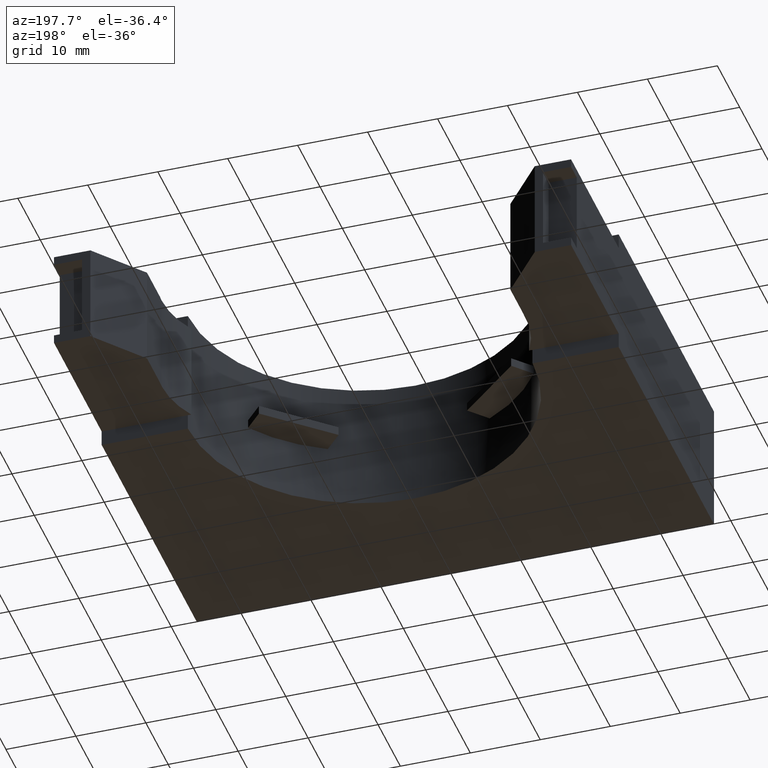
[diagram: clean part render]
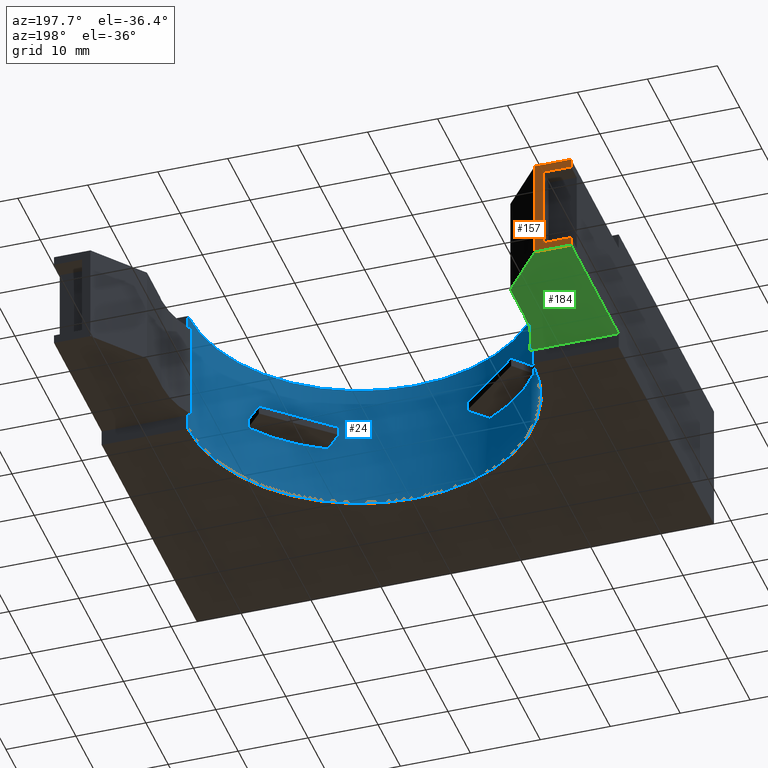
[diagram: same view with three faces highlighted in distinct colors, each labeled with its STEP entity id]
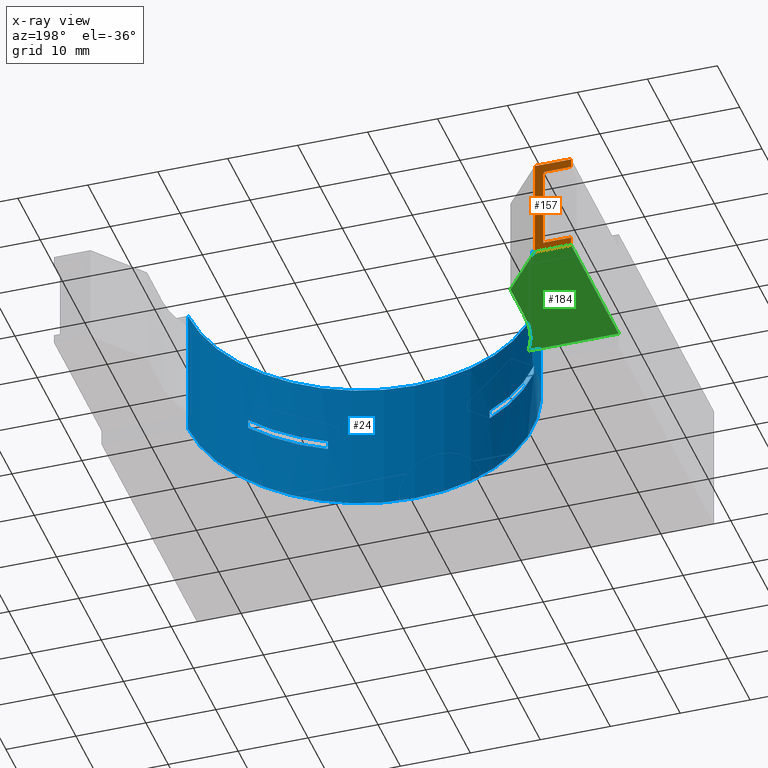
[diagram: x-ray of the same camera — body ghosted, the three highlighted faces saturated]
A machine part, auxiliary view with three faces highlighted in distinct colors.
The next image is the same camera in x-ray (body ghosted, the three faces saturated) — at least one of them is partly hidden behind the body in this view.
Their STEP definitions:

[orange] entity #157 — the highlighted planar face has unit normal (0, -1, 0).
#22 = ORIENTED_EDGE ( 'NONE', *, *, #106, .T. ) ;
#62 = ORIENTED_EDGE ( 'NONE', *, *, #63, .F. ) ;
#63 = EDGE_CURVE ( 'NONE', #64, #103, #859, .T. ) ;
#64 = VERTEX_POINT ( 'NONE', #855 ) ;
#65 = ORIENTED_EDGE ( 'NONE', *, *, #66, .F. ) ;
#66 = EDGE_CURVE ( 'NONE', #67, #64, #854, .T. ) ;
#67 = VERTEX_POINT ( 'NONE', #850 ) ;
#68 = ORIENTED_EDGE ( 'NONE', *, *, #69, .F. ) ;
#69 = EDGE_CURVE ( 'NONE', #70, #67, #849, .T. ) ;
#70 = VERTEX_POINT ( 'NONE', #845 ) ;
#71 = ORIENTED_EDGE ( 'NONE', *, *, #320, .F. ) ;
#78 = ORIENTED_EDGE ( 'NONE', *, *, #80, .F. ) ;
#79 = VERTEX_POINT ( 'NONE', #756 ) ;
#80 = EDGE_CURVE ( 'NONE', #81, #79, #755, .T. ) ;
#81 = VERTEX_POINT ( 'NONE', #751 ) ;
#102 = EDGE_CURVE ( 'NONE', #103, #104, #781, .T. ) ;
#103 = VERTEX_POINT ( 'NONE', #777 ) ;
#104 = VERTEX_POINT ( 'NONE', #776 ) ;
#106 = EDGE_CURVE ( 'NONE', #321, #79, #775, .T. ) ;
#157 = ADVANCED_FACE ( 'NONE', ( #732 ), #731, .F. ) ;
#158 = EDGE_LOOP ( 'NONE', ( #159, #62, #65, #68, #71, #22, #78, #335 ) ) ;
#159 = ORIENTED_EDGE ( 'NONE', *, *, #102, .F. ) ;
#320 = EDGE_CURVE ( 'NONE', #321, #70, #1314, .T. ) ;
#321 = VERTEX_POINT ( 'NONE', #1310 ) ;
#335 = ORIENTED_EDGE ( 'NONE', *, *, #336, .F. ) ;
#336 = EDGE_CURVE ( 'NONE', #104, #81, #1217, .T. ) ;
#690 = DIRECTION ( 'NONE',  ( 1.000000000000000000, -0.0000000000000000000, -0.0000000000000000000 ) ) ;
#691 = VECTOR ( 'NONE', #690, 39.37007874015748100 ) ;
#692 = CARTESIAN_POINT ( 'NONE',  ( -1.455000000000000700, 1.260000000000000200, 0.6604500000000004300 ) ) ;
#727 = DIRECTION ( 'NONE',  ( 0.0000000000000000000, -0.0000000000000000000, -1.000000000000000000 ) ) ;
#728 = DIRECTION ( 'NONE',  ( 0.0000000000000000000, -1.000000000000000000, 0.0000000000000000000 ) ) ;
#729 = AXIS2_PLACEMENT_3D ( 'NONE', #730, #728, #727 ) ;
#730 = CARTESIAN_POINT ( 'NONE',  ( -1.455000000000000700, 1.260000000000000200, 0.7500000000000001100 ) ) ;
#731 = PLANE ( 'NONE',  #729 ) ;
#732 = FACE_OUTER_BOUND ( 'NONE', #158, .T. ) ;
#751 = CARTESIAN_POINT ( 'NONE',  ( -1.250507812500000000, 1.260000000000000200, 0.08954999999999979600 ) ) ;
#752 = DIRECTION ( 'NONE',  ( -0.0000000000000000000, -0.0000000000000000000, 1.000000000000000000 ) ) ;
#753 = VECTOR ( 'NONE', #752, 39.37007874015748100 ) ;
#754 = CARTESIAN_POINT ( 'NONE',  ( -1.250507812500000000, 1.260000000000000200, 0.0000000000000000000 ) ) ;
#755 = LINE ( 'NONE', #754, #753 ) ;
#756 = CARTESIAN_POINT ( 'NONE',  ( -1.250507812500000200, 1.260000000000000200, 0.6604500000000004300 ) ) ;
#775 = LINE ( 'NONE', #692, #691 ) ;
#776 = CARTESIAN_POINT ( 'NONE',  ( -1.455000000000000700, 1.260000000000000200, 0.08954999999999983800 ) ) ;
#777 = CARTESIAN_POINT ( 'NONE',  ( -1.455000000000000700, 1.260000000000000200, 0.1397750000000001200 ) ) ;
#778 = DIRECTION ( 'NONE',  ( -0.0000000000000000000, -0.0000000000000000000, -1.000000000000000000 ) ) ;
#779 = VECTOR ( 'NONE', #778, 39.37007874015748100 ) ;
#780 = CARTESIAN_POINT ( 'NONE',  ( -1.455000000000000700, 1.260000000000000200, 0.7500000000000001100 ) ) ;
#781 = LINE ( 'NONE', #780, #779 ) ;
#845 = CARTESIAN_POINT ( 'NONE',  ( -1.455000000000000700, 1.260000000000000200, 0.6102250000000001300 ) ) ;
#846 = DIRECTION ( 'NONE',  ( 1.000000000000000000, 0.0000000000000000000, -8.629693460194530500E-016 ) ) ;
#847 = VECTOR ( 'NONE', #846, 39.37007874015748100 ) ;
#848 = CARTESIAN_POINT ( 'NONE',  ( -1.455000000000000700, 1.260000000000000200, 0.6102250000000001300 ) ) ;
#849 = LINE ( 'NONE', #848, #847 ) ;
#850 = CARTESIAN_POINT ( 'NONE',  ( -1.296718132500000100, 1.260000000000000200, 0.6102250000000000200 ) ) ;
#851 = DIRECTION ( 'NONE',  ( -0.0000000000000000000, -0.0000000000000000000, -1.000000000000000000 ) ) ;
#852 = VECTOR ( 'NONE', #851, 39.37007874015748100 ) ;
#853 = CARTESIAN_POINT ( 'NONE',  ( -1.296718132500000100, 1.260000000000000200, 0.1397750000000001200 ) ) ;
#854 = LINE ( 'NONE', #853, #852 ) ;
#855 = CARTESIAN_POINT ( 'NONE',  ( -1.296718132500000100, 1.260000000000000200, 0.1397750000000001200 ) ) ;
#856 = DIRECTION ( 'NONE',  ( -1.000000000000000000, -0.0000000000000000000, -0.0000000000000000000 ) ) ;
#857 = VECTOR ( 'NONE', #856, 39.37007874015748100 ) ;
#858 = CARTESIAN_POINT ( 'NONE',  ( -1.455000000000000700, 1.260000000000000200, 0.1397750000000001200 ) ) ;
#859 = LINE ( 'NONE', #858, #857 ) ;
#1214 = DIRECTION ( 'NONE',  ( 1.000000000000000000, -0.0000000000000000000, -0.0000000000000000000 ) ) ;
#1215 = VECTOR ( 'NONE', #1214, 39.37007874015748100 ) ;
#1216 = CARTESIAN_POINT ( 'NONE',  ( -1.455000000000000700, 1.260000000000000200, 0.08954999999999983800 ) ) ;
#1217 = LINE ( 'NONE', #1216, #1215 ) ;
#1310 = CARTESIAN_POINT ( 'NONE',  ( -1.455000000000000700, 1.260000000000000200, 0.6604500000000004300 ) ) ;
#1311 = DIRECTION ( 'NONE',  ( -0.0000000000000000000, -0.0000000000000000000, -1.000000000000000000 ) ) ;
#1312 = VECTOR ( 'NONE', #1311, 39.37007874015748100 ) ;
#1313 = CARTESIAN_POINT ( 'NONE',  ( -1.455000000000000700, 1.260000000000000200, 0.7500000000000001100 ) ) ;
#1314 = LINE ( 'NONE', #1313, #1312 ) ;

[blue] entity #24 — the highlighted cylindrical surface (partial cylindrical patch) has radius 24.638 mm, axis along (-0, -0, 1).
#24 = ADVANCED_FACE ( 'NONE', ( #704, #703, #702 ), #696, .F. ) ;
#25 = ORIENTED_EDGE ( 'NONE', *, *, #42, .T. ) ;
#32 = EDGE_LOOP ( 'NONE', ( #25, #45, #246, #160, #163, #166, #169, #172 ) ) ;
#42 = EDGE_CURVE ( 'NONE', #43, #44, #893, .T. ) ;
#43 = VERTEX_POINT ( 'NONE', #884 ) ;
#44 = VERTEX_POINT ( 'NONE', #883 ) ;
#45 = ORIENTED_EDGE ( 'NONE', *, *, #249, .F. ) ;
#92 = VERTEX_POINT ( 'NONE', #797 ) ;
#93 = ORIENTED_EDGE ( 'NONE', *, *, #94, .T. ) ;
#94 = EDGE_CURVE ( 'NONE', #176, #95, #796, .T. ) ;
#95 = VERTEX_POINT ( 'NONE', #792 ) ;
#96 = ORIENTED_EDGE ( 'NONE', *, *, #97, .T. ) ;
#97 = EDGE_CURVE ( 'NONE', #95, #98, #791, .T. ) ;
#98 = VERTEX_POINT ( 'NONE', #786 ) ;
#99 = ORIENTED_EDGE ( 'NONE', *, *, #100, .F. ) ;
#100 = EDGE_CURVE ( 'NONE', #92, #98, #785, .T. ) ;
#134 = VERTEX_POINT ( 'NONE', #818 ) ;
#135 = VERTEX_POINT ( 'NONE', #817 ) ;
#136 = ORIENTED_EDGE ( 'NONE', *, *, #137, .F. ) ;
#137 = EDGE_CURVE ( 'NONE', #138, #134, #816, .T. ) ;
#138 = VERTEX_POINT ( 'NONE', #811 ) ;
#139 = ORIENTED_EDGE ( 'NONE', *, *, #140, .T. ) ;
#140 = EDGE_CURVE ( 'NONE', #138, #141, #810, .T. ) ;
#141 = VERTEX_POINT ( 'NONE', #715 ) ;
#142 = ORIENTED_EDGE ( 'NONE', *, *, #143, .T. ) ;
#143 = EDGE_CURVE ( 'NONE', #141, #135, #713, .T. ) ;
#144 = EDGE_LOOP ( 'NONE', ( #145, #93, #96, #99 ) ) ;
#145 = ORIENTED_EDGE ( 'NONE', *, *, #175, .F. ) ;
#160 = ORIENTED_EDGE ( 'NONE', *, *, #161, .F. ) ;
#161 = EDGE_CURVE ( 'NONE', #162, #248, #726, .T. ) ;
#162 = VERTEX_POINT ( 'NONE', #722 ) ;
#163 = ORIENTED_EDGE ( 'NONE', *, *, #164, .F. ) ;
#164 = EDGE_CURVE ( 'NONE', #165, #162, #721, .T. ) ;
#165 = VERTEX_POINT ( 'NONE', #716 ) ;
#166 = ORIENTED_EDGE ( 'NONE', *, *, #167, .T. ) ;
#167 = EDGE_CURVE ( 'NONE', #165, #168, #382, .T. ) ;
#168 = VERTEX_POINT ( 'NONE', #931 ) ;
#169 = ORIENTED_EDGE ( 'NONE', *, *, #170, .T. ) ;
#170 = EDGE_CURVE ( 'NONE', #168, #171, #970, .T. ) ;
#171 = VERTEX_POINT ( 'NONE', #966 ) ;
#172 = ORIENTED_EDGE ( 'NONE', *, *, #173, .T. ) ;
#173 = EDGE_CURVE ( 'NONE', #171, #43, #965, .T. ) ;
#174 = EDGE_LOOP ( 'NONE', ( #257, #136, #139, #142 ) ) ;
#175 = EDGE_CURVE ( 'NONE', #176, #92, #980, .T. ) ;
#176 = VERTEX_POINT ( 'NONE', #975 ) ;
#246 = ORIENTED_EDGE ( 'NONE', *, *, #247, .F. ) ;
#247 = EDGE_CURVE ( 'NONE', #248, #250, #1063, .T. ) ;
#248 = VERTEX_POINT ( 'NONE', #1059 ) ;
#249 = EDGE_CURVE ( 'NONE', #250, #44, #1058, .T. ) ;
#250 = VERTEX_POINT ( 'NONE', #1054 ) ;
#257 = ORIENTED_EDGE ( 'NONE', *, *, #258, .F. ) ;
#258 = EDGE_CURVE ( 'NONE', #134, #135, #1040, .T. ) ;
#377 = CARTESIAN_POINT ( 'NONE',  ( -0.9700000000000003100, 0.4199999999999998700, 0.0000000000000000000 ) ) ;
#382 = LINE ( 'NONE', #377, #971 ) ;
#693 = DIRECTION ( 'NONE',  ( 1.000000000000000000, 0.0000000000000000000, 0.0000000000000000000 ) ) ;
#694 = DIRECTION ( 'NONE',  ( -0.0000000000000000000, -0.0000000000000000000, 1.000000000000000000 ) ) ;
#695 = AXIS2_PLACEMENT_3D ( 'NONE', #697, #694, #693 ) ;
#696 = CYLINDRICAL_SURFACE ( 'NONE', #695, 0.9700000000000003100 ) ;
#697 = CARTESIAN_POINT ( 'NONE',  ( 0.0000000000000000000, 0.4199999999999998700, 0.0000000000000000000 ) ) ;
#702 = FACE_BOUND ( 'NONE', #144, .T. ) ;
#703 = FACE_BOUND ( 'NONE', #174, .T. ) ;
#704 = FACE_OUTER_BOUND ( 'NONE', #32, .T. ) ;
#709 = DIRECTION ( 'NONE',  ( 0.0000000000000000000, 1.000000000000000000, 7.040845344495519300E-017 ) ) ;
#710 = DIRECTION ( 'NONE',  ( 0.0000000000000000000, 8.326672684688674100E-017, -1.000000000000000000 ) ) ;
#711 = CARTESIAN_POINT ( 'NONE',  ( 0.0000000000000000000, 0.4199999999999998200, 0.4000000000000002400 ) ) ;
#712 = AXIS2_PLACEMENT_3D ( 'NONE', #711, #710, #709 ) ;
#713 = CIRCLE ( 'NONE', #712, 0.9700000000000005300 ) ;
#715 = CARTESIAN_POINT ( 'NONE',  ( -0.4556505851490764100, -0.4363191836303247400, 0.4000000000000001900 ) ) ;
#716 = CARTESIAN_POINT ( 'NONE',  ( -0.9700000000000003100, 0.4199999999999998700, 0.0000000000000000000 ) ) ;
#717 = DIRECTION ( 'NONE',  ( 1.000000000000000000, 0.0000000000000000000, 0.0000000000000000000 ) ) ;
#718 = DIRECTION ( 'NONE',  ( 0.0000000000000000000, 0.0000000000000000000, 1.000000000000000000 ) ) ;
#719 = CARTESIAN_POINT ( 'NONE',  ( 0.0000000000000000000, 0.4199999999999998700, 0.0000000000000000000 ) ) ;
#720 = AXIS2_PLACEMENT_3D ( 'NONE', #719, #718, #717 ) ;
#721 = CIRCLE ( 'NONE', #720, 0.9700000000000003100 ) ;
#722 = CARTESIAN_POINT ( 'NONE',  ( 0.9700000000000003100, 0.4199999999999998700, 0.0000000000000000000 ) ) ;
#723 = DIRECTION ( 'NONE',  ( -0.0000000000000000000, -0.0000000000000000000, 1.000000000000000000 ) ) ;
#724 = VECTOR ( 'NONE', #723, 39.37007874015748100 ) ;
#725 = CARTESIAN_POINT ( 'NONE',  ( 0.9700000000000003100, 0.4199999999999998700, 0.0000000000000000000 ) ) ;
#726 = LINE ( 'NONE', #725, #724 ) ;
#782 = DIRECTION ( 'NONE',  ( -0.0000000000000000000, -8.326672684688672800E-017, 1.000000000000000000 ) ) ;
#783 = VECTOR ( 'NONE', #782, 39.37007874015748100 ) ;
#784 = CARTESIAN_POINT ( 'NONE',  ( 0.4556505851490762500, -0.4363191836303248500, 0.3500000000000000900 ) ) ;
#785 = LINE ( 'NONE', #784, #783 ) ;
#786 = CARTESIAN_POINT ( 'NONE',  ( 0.4556505851490761400, -0.4363191836303245100, 0.4000000000000001900 ) ) ;
#787 = DIRECTION ( 'NONE',  ( 0.0000000000000000000, -1.000000000000000000, -7.040845344495519300E-017 ) ) ;
#788 = DIRECTION ( 'NONE',  ( -0.0000000000000000000, 8.326672684688674100E-017, -1.000000000000000000 ) ) ;
#789 = CARTESIAN_POINT ( 'NONE',  ( 0.0000000000000000000, 0.4199999999999998200, 0.4000000000000002400 ) ) ;
#790 = AXIS2_PLACEMENT_3D ( 'NONE', #789, #788, #787 ) ;
#791 = CIRCLE ( 'NONE', #790, 0.9700000000000005300 ) ;
#792 = CARTESIAN_POINT ( 'NONE',  ( 0.8039997220916044200, -0.1226642118996092600, 0.4000000000000001900 ) ) ;
#793 = DIRECTION ( 'NONE',  ( -0.0000000000000000000, -8.326672684688672800E-017, 1.000000000000000000 ) ) ;
#794 = VECTOR ( 'NONE', #793, 39.37007874015748100 ) ;
#795 = CARTESIAN_POINT ( 'NONE',  ( 0.8039997220916044200, -0.1226642118996092600, 0.3500000000000001400 ) ) ;
#796 = LINE ( 'NONE', #795, #794 ) ;
#797 = CARTESIAN_POINT ( 'NONE',  ( 0.4556505851490762500, -0.4363191836303248500, 0.3500000000000000900 ) ) ;
#807 = DIRECTION ( 'NONE',  ( -0.0000000000000000000, -8.326672684688672800E-017, 1.000000000000000000 ) ) ;
#808 = VECTOR ( 'NONE', #807, 39.37007874015748100 ) ;
#809 = CARTESIAN_POINT ( 'NONE',  ( -0.4556505851490764100, -0.4363191836303247400, 0.3500000000000001400 ) ) ;
#810 = LINE ( 'NONE', #809, #808 ) ;
#811 = CARTESIAN_POINT ( 'NONE',  ( -0.4556505851490761900, -0.4363191836303242400, 0.3500000000000001400 ) ) ;
#812 = DIRECTION ( 'NONE',  ( 0.0000000000000000000, 1.000000000000000000, 7.040845344495519300E-017 ) ) ;
#813 = DIRECTION ( 'NONE',  ( 0.0000000000000000000, 8.326672684688674100E-017, -1.000000000000000000 ) ) ;
#814 = CARTESIAN_POINT ( 'NONE',  ( 0.0000000000000000000, 0.4199999999999998200, 0.3500000000000002600 ) ) ;
#815 = AXIS2_PLACEMENT_3D ( 'NONE', #814, #813, #812 ) ;
#816 = CIRCLE ( 'NONE', #815, 0.9700000000000005300 ) ;
#817 = CARTESIAN_POINT ( 'NONE',  ( -0.8039997220916044200, -0.1226642118996088000, 0.4000000000000002400 ) ) ;
#818 = CARTESIAN_POINT ( 'NONE',  ( -0.8039997220916044200, -0.1226642118996088000, 0.3500000000000001400 ) ) ;
#883 = CARTESIAN_POINT ( 'NONE',  ( 0.9700000000000003100, 0.4199999999999997600, 0.7500000000000001100 ) ) ;
#884 = CARTESIAN_POINT ( 'NONE',  ( -0.9700000000000003100, 0.4199999999999997600, 0.7500000000000001100 ) ) ;
#885 = DIRECTION ( 'NONE',  ( 1.000000000000000000, 0.0000000000000000000, 0.0000000000000000000 ) ) ;
#886 = DIRECTION ( 'NONE',  ( 0.0000000000000000000, 0.0000000000000000000, 1.000000000000000000 ) ) ;
#887 = CARTESIAN_POINT ( 'NONE',  ( 0.0000000000000000000, 0.4199999999999998700, 0.7500000000000001100 ) ) ;
#888 = AXIS2_PLACEMENT_3D ( 'NONE', #887, #886, #885 ) ;
#893 = CIRCLE ( 'NONE', #888, 0.9700000000000003100 ) ;
#931 = CARTESIAN_POINT ( 'NONE',  ( -0.9700000000000003100, 0.4199999999999998700, 0.08954999999999972700 ) ) ;
#962 = DIRECTION ( 'NONE',  ( -0.0000000000000000000, -0.0000000000000000000, 1.000000000000000000 ) ) ;
#963 = VECTOR ( 'NONE', #962, 39.37007874015748100 ) ;
#964 = CARTESIAN_POINT ( 'NONE',  ( -0.9700000000000002000, 0.4199999999999997600, 0.0000000000000000000 ) ) ;
#965 = LINE ( 'NONE', #964, #963 ) ;
#966 = CARTESIAN_POINT ( 'NONE',  ( -0.9700000000000003100, 0.4199999999999997600, 0.6604500000000003100 ) ) ;
#967 = DIRECTION ( 'NONE',  ( -0.0000000000000000000, -0.0000000000000000000, 1.000000000000000000 ) ) ;
#968 = VECTOR ( 'NONE', #967, 39.37007874015748100 ) ;
#969 = CARTESIAN_POINT ( 'NONE',  ( -0.9700000000000003100, 0.4199999999999998700, 0.0000000000000000000 ) ) ;
#970 = LINE ( 'NONE', #969, #968 ) ;
#971 = VECTOR ( 'NONE', #981, 39.37007874015748100 ) ;
#975 = CARTESIAN_POINT ( 'NONE',  ( 0.8039997220916044200, -0.1226642118996092600, 0.3500000000000001400 ) ) ;
#976 = DIRECTION ( 'NONE',  ( 0.0000000000000000000, -1.000000000000000000, -7.040845344495519300E-017 ) ) ;
#977 = DIRECTION ( 'NONE',  ( -0.0000000000000000000, 8.326672684688674100E-017, -1.000000000000000000 ) ) ;
#978 = CARTESIAN_POINT ( 'NONE',  ( 0.0000000000000000000, 0.4199999999999998200, 0.3500000000000002600 ) ) ;
#979 = AXIS2_PLACEMENT_3D ( 'NONE', #978, #977, #976 ) ;
#980 = CIRCLE ( 'NONE', #979, 0.9700000000000005300 ) ;
#981 = DIRECTION ( 'NONE',  ( -0.0000000000000000000, -0.0000000000000000000, 1.000000000000000000 ) ) ;
#1037 = DIRECTION ( 'NONE',  ( -0.0000000000000000000, -8.326672684688672800E-017, 1.000000000000000000 ) ) ;
#1038 = VECTOR ( 'NONE', #1037, 39.37007874015748100 ) ;
#1039 = CARTESIAN_POINT ( 'NONE',  ( -0.8039997220916046400, -0.1226642118996090600, 0.3500000000000001400 ) ) ;
#1040 = LINE ( 'NONE', #1039, #1038 ) ;
#1054 = CARTESIAN_POINT ( 'NONE',  ( 0.9700000000000003100, 0.4199999999999997600, 0.6604500000000003100 ) ) ;
#1055 = DIRECTION ( 'NONE',  ( -0.0000000000000000000, -0.0000000000000000000, 1.000000000000000000 ) ) ;
#1056 = VECTOR ( 'NONE', #1055, 39.37007874015748100 ) ;
#1057 = CARTESIAN_POINT ( 'NONE',  ( 0.9700000000000003100, 0.4199999999999998700, 0.0000000000000000000 ) ) ;
#1058 = LINE ( 'NONE', #1057, #1056 ) ;
#1059 = CARTESIAN_POINT ( 'NONE',  ( 0.9700000000000003100, 0.4199999999999998700, 0.08954999999999969900 ) ) ;
#1060 = DIRECTION ( 'NONE',  ( -0.0000000000000000000, -0.0000000000000000000, 1.000000000000000000 ) ) ;
#1061 = VECTOR ( 'NONE', #1060, 39.37007874015748100 ) ;
#1062 = CARTESIAN_POINT ( 'NONE',  ( 0.9700000000000003100, 0.4199999999999998700, 0.0000000000000000000 ) ) ;
#1063 = LINE ( 'NONE', #1062, #1061 ) ;

[green] entity #184 — the highlighted planar face has unit normal (0, -0, 1).
#81 = VERTEX_POINT ( 'NONE', #751 ) ;
#104 = VERTEX_POINT ( 'NONE', #776 ) ;
#108 = EDGE_CURVE ( 'NONE', #104, #308, #689, .T. ) ;
#168 = VERTEX_POINT ( 'NONE', #931 ) ;
#182 = EDGE_CURVE ( 'NONE', #308, #168, #961, .T. ) ;
#184 = ADVANCED_FACE ( 'NONE', ( #954 ), #952, .F. ) ;
#185 = EDGE_LOOP ( 'NONE', ( #186, #187, #188, #431, #432, #433, #434 ) ) ;
#186 = ORIENTED_EDGE ( 'NONE', *, *, #365, .F. ) ;
#187 = ORIENTED_EDGE ( 'NONE', *, *, #182, .F. ) ;
#188 = ORIENTED_EDGE ( 'NONE', *, *, #108, .F. ) ;
#264 = EDGE_CURVE ( 'NONE', #360, #265, #1126, .T. ) ;
#265 = VERTEX_POINT ( 'NONE', #1122 ) ;
#308 = VERTEX_POINT ( 'NONE', #1336 ) ;
#336 = EDGE_CURVE ( 'NONE', #104, #81, #1217, .T. ) ;
#342 = EDGE_CURVE ( 'NONE', #265, #81, #1212, .T. ) ;
#359 = EDGE_CURVE ( 'NONE', #366, #360, #1369, .T. ) ;
#360 = VERTEX_POINT ( 'NONE', #1365 ) ;
#365 = EDGE_CURVE ( 'NONE', #168, #366, #1359, .T. ) ;
#366 = VERTEX_POINT ( 'NONE', #1355 ) ;
#431 = ORIENTED_EDGE ( 'NONE', *, *, #336, .T. ) ;
#432 = ORIENTED_EDGE ( 'NONE', *, *, #342, .F. ) ;
#433 = ORIENTED_EDGE ( 'NONE', *, *, #264, .F. ) ;
#434 = ORIENTED_EDGE ( 'NONE', *, *, #359, .F. ) ;
#686 = DIRECTION ( 'NONE',  ( 0.0000000000000000000, -1.000000000000000000, -1.219574997171545800E-016 ) ) ;
#687 = VECTOR ( 'NONE', #686, 39.37007874015748100 ) ;
#688 = CARTESIAN_POINT ( 'NONE',  ( -1.455000000000000700, 1.260000000000000200, 0.08954999999999983800 ) ) ;
#689 = LINE ( 'NONE', #688, #687 ) ;
#751 = CARTESIAN_POINT ( 'NONE',  ( -1.250507812500000000, 1.260000000000000200, 0.08954999999999979600 ) ) ;
#776 = CARTESIAN_POINT ( 'NONE',  ( -1.455000000000000700, 1.260000000000000200, 0.08954999999999983800 ) ) ;
#931 = CARTESIAN_POINT ( 'NONE',  ( -0.9700000000000003100, 0.4199999999999998700, 0.08954999999999972700 ) ) ;
#948 = DIRECTION ( 'NONE',  ( 0.0000000000000000000, -1.000000000000000000, -1.219574997171545800E-016 ) ) ;
#949 = DIRECTION ( 'NONE',  ( 0.0000000000000000000, -1.219574997171545800E-016, 1.000000000000000000 ) ) ;
#950 = CARTESIAN_POINT ( 'NONE',  ( -1.455000000000000700, 1.260000000000000200, 0.08954999999999983800 ) ) ;
#951 = AXIS2_PLACEMENT_3D ( 'NONE', #950, #949, #948 ) ;
#952 = PLANE ( 'NONE',  #951 ) ;
#954 = FACE_OUTER_BOUND ( 'NONE', #185, .T. ) ;
#955 = DIRECTION ( 'NONE',  ( 1.000000000000000000, -0.0000000000000000000, -0.0000000000000000000 ) ) ;
#956 = VECTOR ( 'NONE', #955, 39.37007874015748100 ) ;
#957 = CARTESIAN_POINT ( 'NONE',  ( -1.455000000000000700, 0.4199999999999998700, 0.08954999999999972700 ) ) ;
#961 = LINE ( 'NONE', #957, #956 ) ;
#1122 = CARTESIAN_POINT ( 'NONE',  ( -1.022578125000000100, 0.9752734374999998400, 0.08954999999999979600 ) ) ;
#1123 = DIRECTION ( 'NONE',  ( 0.0000000000000000000, 1.000000000000000000, 1.219574997171545800E-016 ) ) ;
#1124 = VECTOR ( 'NONE', #1123, 39.37007874015748100 ) ;
#1125 = CARTESIAN_POINT ( 'NONE',  ( -1.022578125000000100, 0.7473437499999998600, 0.08954999999999976900 ) ) ;
#1126 = LINE ( 'NONE', #1125, #1124 ) ;
#1204 = DIRECTION ( 'NONE',  ( -0.6249431803733753700, 0.7806702385161167200, 9.520859039302030700E-017 ) ) ;
#1205 = VECTOR ( 'NONE', #1204, 39.37007874015748900 ) ;
#1206 = CARTESIAN_POINT ( 'NONE',  ( -1.022578125000000100, 0.9752734374999998400, 0.08954999999999979600 ) ) ;
#1212 = LINE ( 'NONE', #1206, #1205 ) ;
#1214 = DIRECTION ( 'NONE',  ( 1.000000000000000000, -0.0000000000000000000, -0.0000000000000000000 ) ) ;
#1215 = VECTOR ( 'NONE', #1214, 39.37007874015748100 ) ;
#1216 = CARTESIAN_POINT ( 'NONE',  ( -1.455000000000000700, 1.260000000000000200, 0.08954999999999983800 ) ) ;
#1217 = LINE ( 'NONE', #1216, #1215 ) ;
#1336 = CARTESIAN_POINT ( 'NONE',  ( -1.455000000000000700, 0.4199999999999998700, 0.08954999999999972700 ) ) ;
#1355 = CARTESIAN_POINT ( 'NONE',  ( -0.9506000000000002200, 0.4199999999999998700, 0.08954999999999972700 ) ) ;
#1356 = DIRECTION ( 'NONE',  ( 1.000000000000000000, -0.0000000000000000000, -0.0000000000000000000 ) ) ;
#1357 = VECTOR ( 'NONE', #1356, 39.37007874015748100 ) ;
#1358 = CARTESIAN_POINT ( 'NONE',  ( -1.455000000000000700, 0.4199999999999998700, 0.08954999999999972700 ) ) ;
#1359 = LINE ( 'NONE', #1358, #1357 ) ;
#1365 = CARTESIAN_POINT ( 'NONE',  ( -1.022578125000000100, 0.7473437500000000800, 0.08954999999999976900 ) ) ;
#1366 = DIRECTION ( 'NONE',  ( 0.0000000000000000000, -1.000000000000000000, -1.138269997360109900E-016 ) ) ;
#1367 = DIRECTION ( 'NONE',  ( -0.0000000000000000000, 1.219574997171545800E-016, -1.000000000000000000 ) ) ;
#1368 = AXIS2_PLACEMENT_3D ( 'NONE', #1373, #1367, #1366 ) ;
#1369 = CIRCLE ( 'NONE', #1368, 0.5999999999999998700 ) ;
#1373 = CARTESIAN_POINT ( 'NONE',  ( -0.4239093913883427700, 0.7073969429209047100, 0.08954999999999976900 ) ) ;